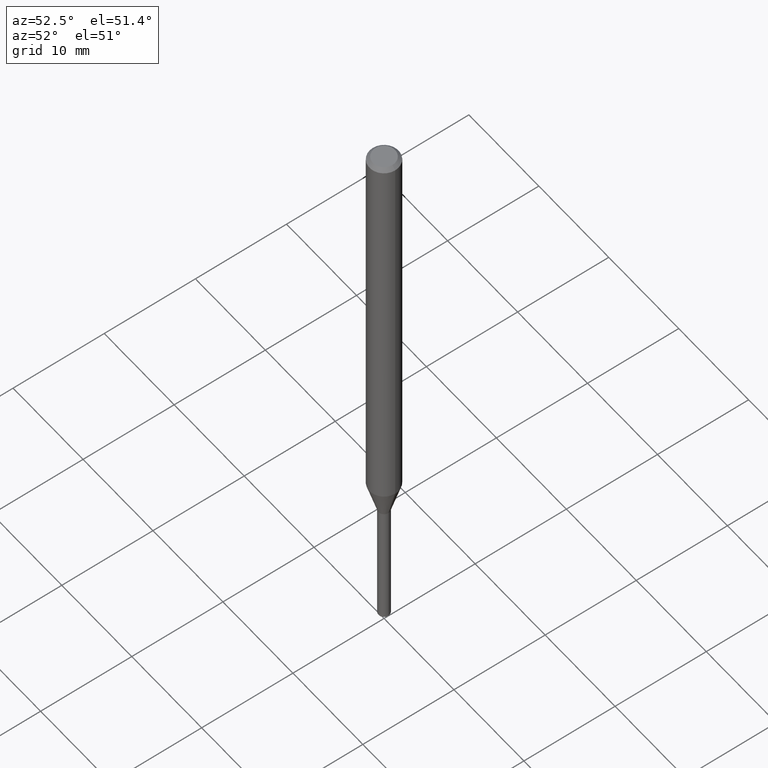
[diagram: clean part render]
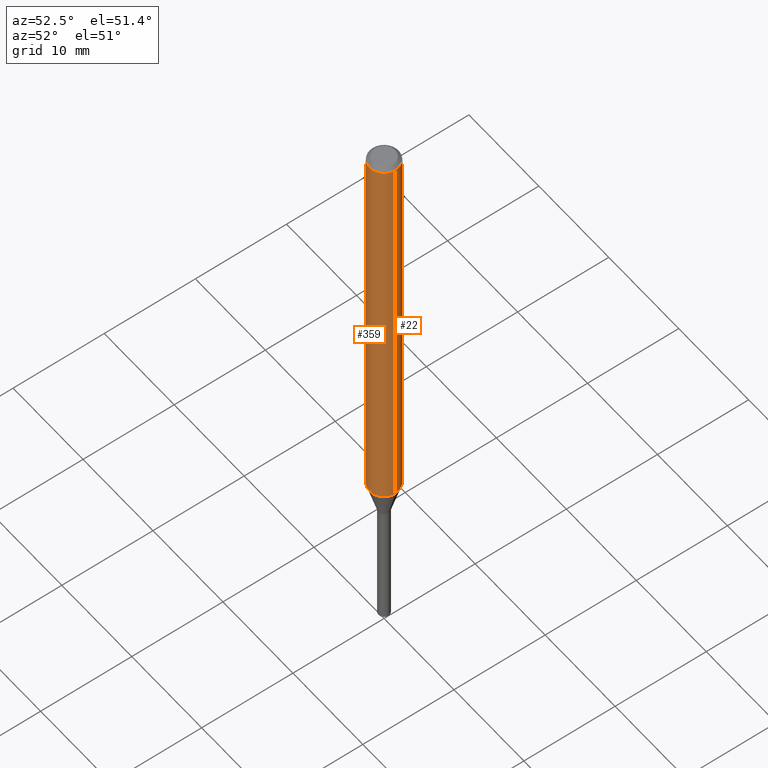
[diagram: same view with one multi-face feature highlighted, each face labeled with its STEP entity id]
A machine part, auxiliary view. The highlighted faces form ONE feature: a constant-radius fillet chain: 2 tangent blend faces with common blend radius 1.5875 mm. The faces share edges in the B-rep.
Their STEP definitions:
[1] entity #22 (Cylinder):
#5 = ORIENTED_EDGE ( 'NONE', *, *, #195, .T. ) ;
#11 = CARTESIAN_POINT ( 'NONE',  ( 4.378489669287124378E-29, -6.251322827740924299E-15, -1.790450018504814444 ) ) ;
#14 = DIRECTION ( 'NONE',  ( -2.445468806185136597E-29, 3.491481338843145583E-15, 1.000000000000000000 ) ) ;
#21 = CARTESIAN_POINT ( 'NONE',  ( -0.06250000000000000000, -2.707758314061723270E-15, -0.01499999999999999944 ) ) ;
#22 = ADVANCED_FACE ( 'NONE', ( #208 ), #183, .T. ) ;
#41 = DIRECTION ( 'NONE',  ( -2.445468806185136877E-29, 3.491481338843145188E-15, 1.000000000000000000 ) ) ;
#76 = VERTEX_POINT ( 'NONE', #418 ) ;
#89 = AXIS2_PLACEMENT_3D ( 'NONE', #287, #400, #399 ) ;
#96 = CARTESIAN_POINT ( 'NONE',  ( -0.06250000000000000000, 4.440892098500626162E-16, -3.074334431409316114E-30 ) ) ;
#111 = LINE ( 'NONE', #355, #383 ) ;
#126 = AXIS2_PLACEMENT_3D ( 'NONE', #220, #14, #449 ) ;
#137 = VERTEX_POINT ( 'NONE', #185 ) ;
#140 = EDGE_CURVE ( 'NONE', #76, #354, #279, .T. ) ;
#156 = ORIENTED_EDGE ( 'NONE', *, *, #140, .F. ) ;
#183 = CYLINDRICAL_SURFACE ( 'NONE', #126, 0.06250000000000000000 ) ;
#185 = CARTESIAN_POINT ( 'NONE',  ( 0.06250000000000000000, -6.687757995096315969E-15, -1.790450018504814444 ) ) ;
#192 = CARTESIAN_POINT ( 'NONE',  ( -0.06250000000000000000, -5.807233617890861683E-15, -1.790450018504814444 ) ) ;
#195 = EDGE_CURVE ( 'NONE', #137, #347, #288, .T. ) ;
#207 = VECTOR ( 'NONE', #373, 39.37007874015748143 ) ;
#208 = FACE_OUTER_BOUND ( 'NONE', #376, .T. ) ;
#219 = DIRECTION ( 'NONE',  ( -2.445468806185136597E-29, 3.491481338843145583E-15, 1.000000000000000000 ) ) ;
#220 = CARTESIAN_POINT ( 'NONE',  ( 0.000000000000000000, 0.000000000000000000, 0.000000000000000000 ) ) ;
#248 = AXIS2_PLACEMENT_3D ( 'NONE', #11, #219, #349 ) ;
#261 = ORIENTED_EDGE ( 'NONE', *, *, #323, .T. ) ;
#279 = CIRCLE ( 'NONE', #89, 0.06250000000000000000 ) ;
#280 = EDGE_CURVE ( 'NONE', #137, #76, #111, .T. ) ;
#287 = CARTESIAN_POINT ( 'NONE',  ( 3.668203209277705088E-31, -5.237222008264718399E-17, -0.01499999999999999944 ) ) ;
#288 = CIRCLE ( 'NONE', #248, 0.06250000000000000000 ) ;
#323 = EDGE_CURVE ( 'NONE', #347, #354, #440, .T. ) ;
#347 = VERTEX_POINT ( 'NONE', #192 ) ;
#349 = DIRECTION ( 'NONE',  ( 1.000000000000000000, -6.982962677686262766E-15, 0.000000000000000000 ) ) ;
#354 = VERTEX_POINT ( 'NONE', #21 ) ;
#355 = CARTESIAN_POINT ( 'NONE',  ( 0.06250000000000000000, -4.364351673553916694E-16, 3.047610484872459871E-30 ) ) ;
#373 = DIRECTION ( 'NONE',  ( -2.445468806185136877E-29, 3.491481338843145188E-15, 1.000000000000000000 ) ) ;
#376 = EDGE_LOOP ( 'NONE', ( #5, #261, #156, #445 ) ) ;
#383 = VECTOR ( 'NONE', #41, 39.37007874015748143 ) ;
#399 = DIRECTION ( 'NONE',  ( 1.000000000000000000, -6.982962677686266711E-15, 0.000000000000000000 ) ) ;
#400 = DIRECTION ( 'NONE',  ( -2.445468806185136597E-29, 3.491481338843145583E-15, 1.000000000000000000 ) ) ;
#418 = CARTESIAN_POINT ( 'NONE',  ( 0.06250000000000000000, -4.888073874380388472E-16, -0.01499999999999999944 ) ) ;
#440 = LINE ( 'NONE', #96, #207 ) ;
#445 = ORIENTED_EDGE ( 'NONE', *, *, #280, .F. ) ;
#449 = DIRECTION ( 'NONE',  ( 1.000000000000000000, -6.982962677686266711E-15, 4.876176775795935793E-29 ) ) ;
[2] entity #359 (Cylinder):
#13 = CYLINDRICAL_SURFACE ( 'NONE', #227, 0.06250000000000000000 ) ;
#21 = CARTESIAN_POINT ( 'NONE',  ( -0.06250000000000000000, -2.707758314061723270E-15, -0.01499999999999999944 ) ) ;
#24 = EDGE_LOOP ( 'NONE', ( #118, #412, #343, #265 ) ) ;
#41 = DIRECTION ( 'NONE',  ( -2.445468806185136877E-29, 3.491481338843145188E-15, 1.000000000000000000 ) ) ;
#76 = VERTEX_POINT ( 'NONE', #418 ) ;
#77 = EDGE_CURVE ( 'NONE', #347, #137, #314, .T. ) ;
#82 = AXIS2_PLACEMENT_3D ( 'NONE', #108, #322, #146 ) ;
#96 = CARTESIAN_POINT ( 'NONE',  ( -0.06250000000000000000, 4.440892098500626162E-16, -3.074334431409316114E-30 ) ) ;
#108 = CARTESIAN_POINT ( 'NONE',  ( 3.668203209277705088E-31, -5.237222008264718399E-17, -0.01499999999999999944 ) ) ;
#111 = LINE ( 'NONE', #355, #383 ) ;
#117 = AXIS2_PLACEMENT_3D ( 'NONE', #353, #264, #131 ) ;
#118 = ORIENTED_EDGE ( 'NONE', *, *, #323, .F. ) ;
#128 = CARTESIAN_POINT ( 'NONE',  ( 0.000000000000000000, 0.000000000000000000, 0.000000000000000000 ) ) ;
#131 = DIRECTION ( 'NONE',  ( 1.000000000000000000, -6.982962677686262766E-15, 0.000000000000000000 ) ) ;
#137 = VERTEX_POINT ( 'NONE', #185 ) ;
#146 = DIRECTION ( 'NONE',  ( 1.000000000000000000, -6.982962677686266711E-15, 0.000000000000000000 ) ) ;
#160 = DIRECTION ( 'NONE',  ( 1.000000000000000000, -6.982962677686266711E-15, 4.876176775795935793E-29 ) ) ;
#185 = CARTESIAN_POINT ( 'NONE',  ( 0.06250000000000000000, -6.687757995096315969E-15, -1.790450018504814444 ) ) ;
#192 = CARTESIAN_POINT ( 'NONE',  ( -0.06250000000000000000, -5.807233617890861683E-15, -1.790450018504814444 ) ) ;
#207 = VECTOR ( 'NONE', #373, 39.37007874015748143 ) ;
#222 = EDGE_CURVE ( 'NONE', #354, #76, #328, .T. ) ;
#227 = AXIS2_PLACEMENT_3D ( 'NONE', #128, #333, #160 ) ;
#264 = DIRECTION ( 'NONE',  ( -2.445468806185136597E-29, 3.491481338843145583E-15, 1.000000000000000000 ) ) ;
#265 = ORIENTED_EDGE ( 'NONE', *, *, #222, .F. ) ;
#280 = EDGE_CURVE ( 'NONE', #137, #76, #111, .T. ) ;
#314 = CIRCLE ( 'NONE', #117, 0.06250000000000000000 ) ;
#322 = DIRECTION ( 'NONE',  ( -2.445468806185136597E-29, 3.491481338843145583E-15, 1.000000000000000000 ) ) ;
#323 = EDGE_CURVE ( 'NONE', #347, #354, #440, .T. ) ;
#328 = CIRCLE ( 'NONE', #82, 0.06250000000000000000 ) ;
#333 = DIRECTION ( 'NONE',  ( -2.445468806185136597E-29, 3.491481338843145583E-15, 1.000000000000000000 ) ) ;
#343 = ORIENTED_EDGE ( 'NONE', *, *, #280, .T. ) ;
#347 = VERTEX_POINT ( 'NONE', #192 ) ;
#353 = CARTESIAN_POINT ( 'NONE',  ( 4.378489669287124378E-29, -6.251322827740924299E-15, -1.790450018504814444 ) ) ;
#354 = VERTEX_POINT ( 'NONE', #21 ) ;
#355 = CARTESIAN_POINT ( 'NONE',  ( 0.06250000000000000000, -4.364351673553916694E-16, 3.047610484872459871E-30 ) ) ;
#359 = ADVANCED_FACE ( 'NONE', ( #444 ), #13, .T. ) ;
#373 = DIRECTION ( 'NONE',  ( -2.445468806185136877E-29, 3.491481338843145188E-15, 1.000000000000000000 ) ) ;
#383 = VECTOR ( 'NONE', #41, 39.37007874015748143 ) ;
#412 = ORIENTED_EDGE ( 'NONE', *, *, #77, .T. ) ;
#418 = CARTESIAN_POINT ( 'NONE',  ( 0.06250000000000000000, -4.888073874380388472E-16, -0.01499999999999999944 ) ) ;
#440 = LINE ( 'NONE', #96, #207 ) ;
#444 = FACE_OUTER_BOUND ( 'NONE', #24, .T. ) ;